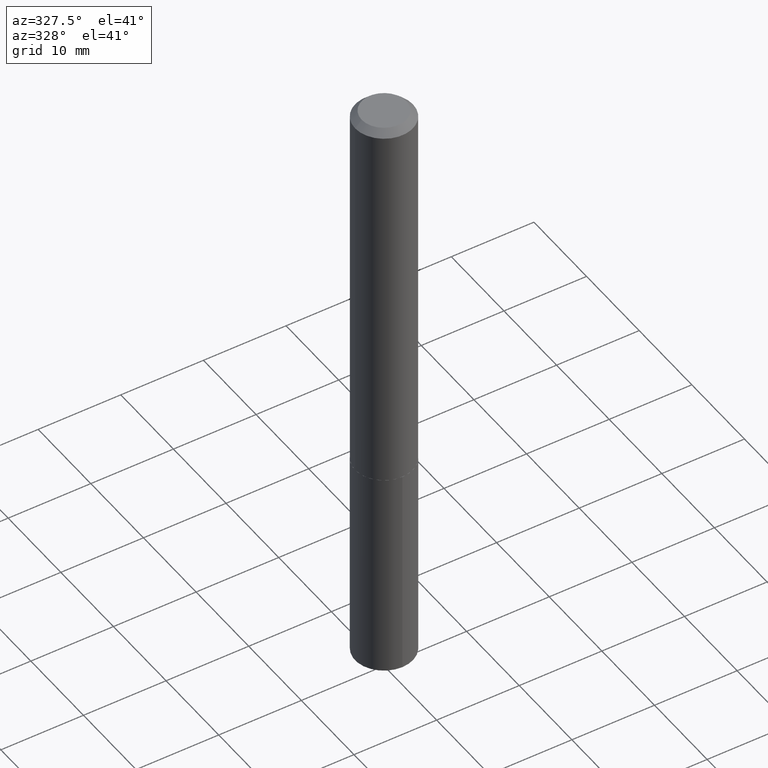
[diagram: clean part render]
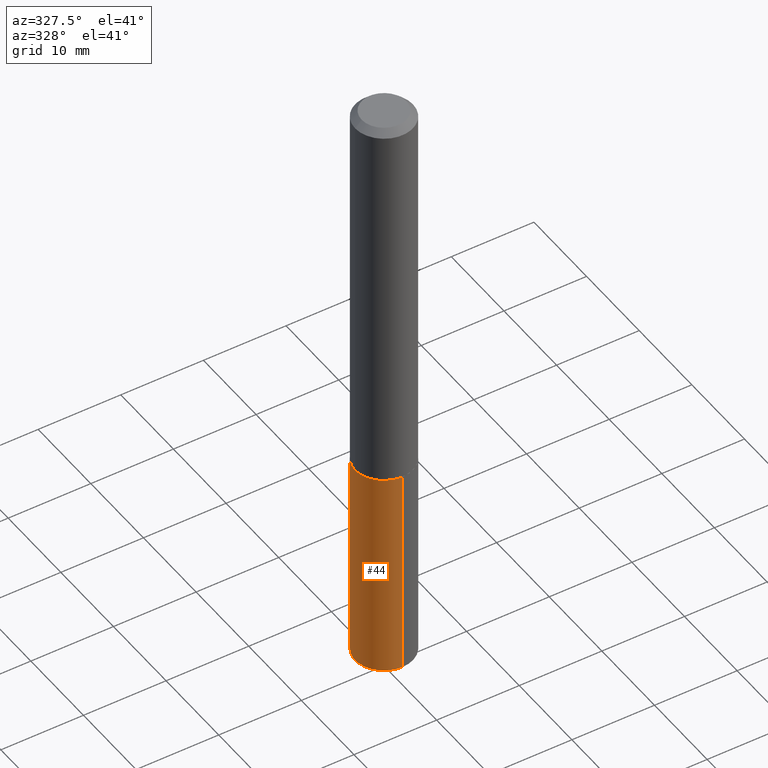
[diagram: same view with one face highlighted and labeled with its STEP entity id]
A machine part, auxiliary view. The second image highlights one B-rep face of the part: STEP entity #44.
In plain terms, the highlighted cylindrical surface (edge-blend (fillet) strip) has radius 3.5001 mm, axis along (-0, 0, 1).
Its self-contained STEP definition (entity closure, byte-faithful):
#10 = CARTESIAN_POINT ( 'NONE',  ( 9.791278898774879117E-16, 0.1377999999999900138, -2.863244901718118296 ) ) ;
#14 = VERTEX_POINT ( 'NONE', #168 ) ;
#30 = CARTESIAN_POINT ( 'NONE',  ( 4.525095478964976833E-29, -6.460637069395356787E-15, -1.850400000000000045 ) ) ;
#39 = DIRECTION ( 'NONE',  ( -6.982962677686265922E-15, -1.000000000000000000, 3.964946289788480896E-15 ) ) ;
#44 = ADVANCED_FACE ( 'NONE', ( #196 ), #389, .T. ) ;
#45 = DIRECTION ( 'NONE',  ( -2.444922659383854649E-29, 3.492263452147326166E-15, 1.000000000000000000 ) ) ;
#48 = LINE ( 'NONE', #131, #149 ) ;
#81 = DIRECTION ( 'NONE',  ( -2.444922659383854929E-29, 3.492263452147326560E-15, 1.000000000000000000 ) ) ;
#85 = VECTOR ( 'NONE', #317, 39.37007874015748143 ) ;
#88 = DIRECTION ( 'NONE',  ( -6.982962677686265922E-15, -1.000000000000000000, 3.964946289788480896E-15 ) ) ;
#90 = DIRECTION ( 'NONE',  ( -2.444922659383854929E-29, 3.492263452147326560E-15, 1.000000000000000000 ) ) ;
#107 = ORIENTED_EDGE ( 'NONE', *, *, #153, .T. ) ;
#131 = CARTESIAN_POINT ( 'NONE',  ( 9.791278898774632598E-16, 0.1377999999999935665, -1.850400000000000489 ) ) ;
#147 = CARTESIAN_POINT ( 'NONE',  ( -9.622522569851223147E-16, -0.1378000000000064729, -1.850399999999999379 ) ) ;
#149 = VECTOR ( 'NONE', #45, 39.37007874015748143 ) ;
#150 = DIRECTION ( 'NONE',  ( -2.444922659383854929E-29, 3.492263452147326560E-15, 1.000000000000000000 ) ) ;
#153 = EDGE_CURVE ( 'NONE', #184, #366, #219, .T. ) ;
#157 = EDGE_CURVE ( 'NONE', #309, #14, #48, .T. ) ;
#167 = AXIS2_PLACEMENT_3D ( 'NONE', #30, #81, #291 ) ;
#168 = CARTESIAN_POINT ( 'NONE',  ( 9.791278898774883061E-16, 0.1377999999999935665, -1.850400000000000489 ) ) ;
#173 = AXIS2_PLACEMENT_3D ( 'NONE', #177, #90, #39 ) ;
#177 = CARTESIAN_POINT ( 'NONE',  ( 4.525095478964976833E-29, -6.460637069395356787E-15, -1.850400000000000045 ) ) ;
#184 = VERTEX_POINT ( 'NONE', #378 ) ;
#192 = ORIENTED_EDGE ( 'NONE', *, *, #248, .F. ) ;
#193 = CARTESIAN_POINT ( 'NONE',  ( -9.622522569851223147E-16, -0.1378000000000064729, -1.850399999999999379 ) ) ;
#196 = FACE_OUTER_BOUND ( 'NONE', #277, .T. ) ;
#219 = LINE ( 'NONE', #193, #85 ) ;
#248 = EDGE_CURVE ( 'NONE', #14, #366, #302, .T. ) ;
#254 = ORIENTED_EDGE ( 'NONE', *, *, #305, .T. ) ;
#275 = CARTESIAN_POINT ( 'NONE',  ( 7.001422929617015840E-29, -9.997758302359288598E-15, -2.863244901718117408 ) ) ;
#277 = EDGE_LOOP ( 'NONE', ( #325, #254, #107, #192 ) ) ;
#291 = DIRECTION ( 'NONE',  ( -6.982962677686265922E-15, -1.000000000000000000, 3.964946289788480896E-15 ) ) ;
#295 = CIRCLE ( 'NONE', #375, 0.1378000000000000058 ) ;
#302 = CIRCLE ( 'NONE', #173, 0.1378000000000000058 ) ;
#305 = EDGE_CURVE ( 'NONE', #309, #184, #295, .T. ) ;
#309 = VERTEX_POINT ( 'NONE', #10 ) ;
#317 = DIRECTION ( 'NONE',  ( -2.444922659383854649E-29, 3.492263452147326166E-15, 1.000000000000000000 ) ) ;
#325 = ORIENTED_EDGE ( 'NONE', *, *, #157, .F. ) ;
#366 = VERTEX_POINT ( 'NONE', #147 ) ;
#375 = AXIS2_PLACEMENT_3D ( 'NONE', #275, #150, #88 ) ;
#378 = CARTESIAN_POINT ( 'NONE',  ( -9.622522569850974656E-16, -0.1378000000000099978, -2.863244901718116964 ) ) ;
#389 = CYLINDRICAL_SURFACE ( 'NONE', #167, 0.1378000000000000058 ) ;